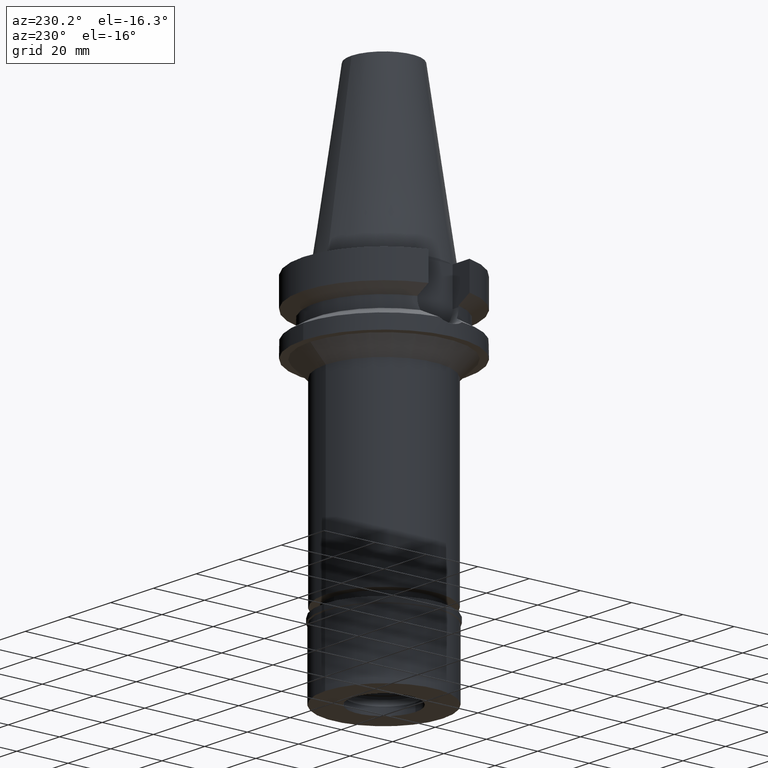
[diagram: clean part render]
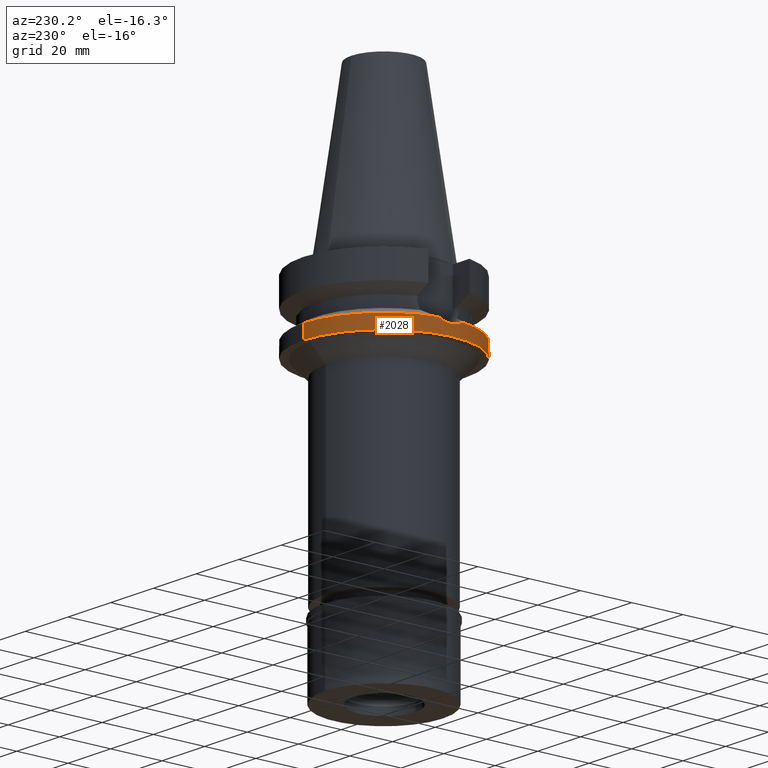
[diagram: same view with one face highlighted and labeled with its STEP entity id]
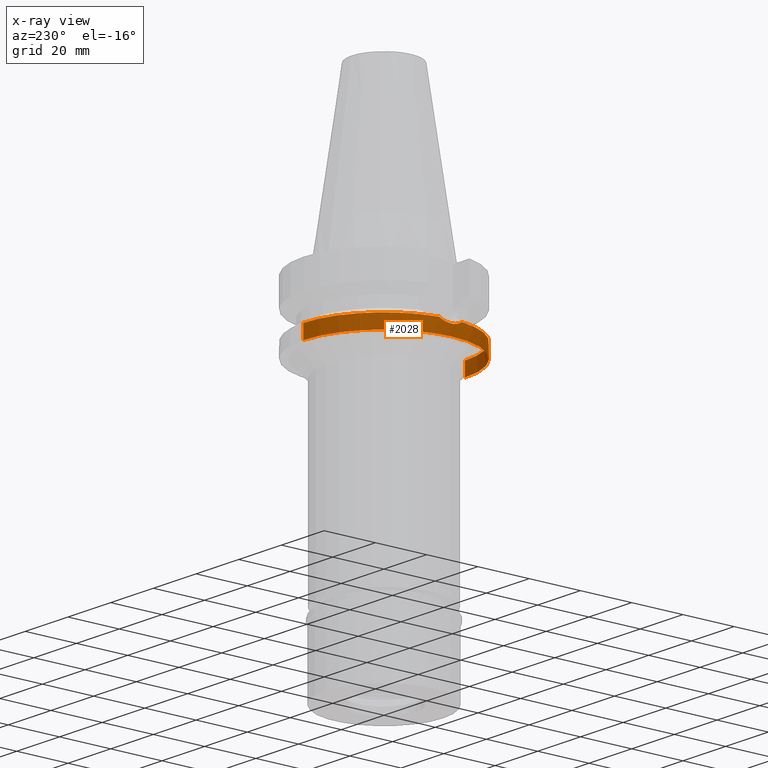
[diagram: x-ray of the same camera — body ghosted, the highlighted face saturated]
A machine part, auxiliary view. The second image highlights one B-rep face of the part: STEP entity #2028.
The next image is the same camera in x-ray: the body ghosted, the highlighted face saturated — about 1% of this face is hidden behind the body in this view.
In plain terms, the highlighted cylindrical surface (partial cylindrical patch) has radius 31.5 mm, axis along (0, 0, -1).
Its self-contained STEP definition (entity closure, byte-faithful):
#9 = CIRCLE ( 'NONE', #1696, 31.50000000000000000 ) ;
#63 = AXIS2_PLACEMENT_3D ( 'NONE', #2615, #1181, #1423 ) ;
#84 = ORIENTED_EDGE ( 'NONE', *, *, #2516, .F. ) ;
#112 = VECTOR ( 'NONE', #1348, 1000.000000000000000 ) ;
#157 = CARTESIAN_POINT ( 'NONE',  ( -31.34957680028626470, 3.080360528137538356, -22.38998594038647738 ) ) ;
#167 = CIRCLE ( 'NONE', #1359, 31.50000000000001421 ) ;
#172 = CARTESIAN_POINT ( 'NONE',  ( 0.0000000000000000000, 0.0000000000000000000, -21.63449434733000132 ) ) ;
#193 = CARTESIAN_POINT ( 'NONE',  ( 0.0000000000000000000, 31.50000000000000000, -21.63449434733000132 ) ) ;
#197 = CARTESIAN_POINT ( 'NONE',  ( -31.38376274163335466, 2.709985741147285854, -22.53275651251309242 ) ) ;
#235 = DIRECTION ( 'NONE',  ( 0.0000000000000000000, 0.0000000000000000000, -1.000000000000000000 ) ) ;
#261 = CARTESIAN_POINT ( 'NONE',  ( 0.0000000000000000000, 0.0000000000000000000, 0.0000000000000000000 ) ) ;
#406 = CARTESIAN_POINT ( 'NONE',  ( -31.17899877608999759, -4.485536235554000051, -21.63449434733000132 ) ) ;
#510 = VERTEX_POINT ( 'NONE', #2215 ) ;
#628 = VERTEX_POINT ( 'NONE', #1150 ) ;
#713 = FACE_OUTER_BOUND ( 'NONE', #2639, .T. ) ;
#729 = CARTESIAN_POINT ( 'NONE',  ( 0.0000000000000000000, -31.50000000000000000, -27.00000000000000000 ) ) ;
#741 = CYLINDRICAL_SURFACE ( 'NONE', #957, 31.50000000000000000 ) ;
#845 = CARTESIAN_POINT ( 'NONE',  ( 0.0000000000000000000, -31.50000000000000000, -21.63449434733000132 ) ) ;
#884 = DIRECTION ( 'NONE',  ( 0.0000000000000000000, 0.0000000000000000000, -1.000000000000000000 ) ) ;
#894 = CARTESIAN_POINT ( 'NONE',  ( -31.22683168261138675, 4.153049314144144688, -21.85760503549061085 ) ) ;
#911 = EDGE_CURVE ( 'NONE', #628, #1724, #167, .T. ) ;
#944 = DIRECTION ( 'NONE',  ( -0.9898094849552905306, 0.1423979757318985240, 0.0000000000000000000 ) ) ;
#957 = AXIS2_PLACEMENT_3D ( 'NONE', #261, #1684, #1428 ) ;
#1097 = LINE ( 'NONE', #193, #112 ) ;
#1108 = CIRCLE ( 'NONE', #63, 31.50000000000000000 ) ;
#1129 = CARTESIAN_POINT ( 'NONE',  ( -31.39943895711289201, 2.522230766773328803, -22.59723491002986151 ) ) ;
#1150 = CARTESIAN_POINT ( 'NONE',  ( -31.17899877608999759, 4.485536235554000051, -21.63449434733000132 ) ) ;
#1152 = EDGE_CURVE ( 'NONE', #1257, #2012, #1108, .T. ) ;
#1160 = CARTESIAN_POINT ( 'NONE',  ( -31.35744702416881680, -3.088306450163058159, -22.42610245956065995 ) ) ;
#1177 = CARTESIAN_POINT ( 'NONE',  ( 0.0000000000000000000, 0.0000000000000000000, -21.63449434733000132 ) ) ;
#1181 = DIRECTION ( 'NONE',  ( 0.0000000000000000000, 0.0000000000000000000, 1.000000000000000000 ) ) ;
#1257 = VERTEX_POINT ( 'NONE', #2429 ) ;
#1265 = B_SPLINE_CURVE_WITH_KNOTS ( 'NONE', 3,
 ( #406, #2299, #1160, #2076, #2774, #2066, #2053, #2799, #1859, #3035, #1342, #1129, #197, #157, #1398, #3061, #894, #1817 ),
 .UNSPECIFIED., .F., .F.,
 ( 4, 2, 2, 2, 2, 2, 2, 2, 4 ),
 ( 0.0000000000000000000, 0.2499999999999996114, 0.3749999999999995559, 0.4999999999999995559, 0.6249999999999994449, 0.7499999999999994449, 0.8124999999999996669, 0.8749999999999997780, 1.000000000000000000 ),
 .UNSPECIFIED. ) ;
#1292 = ORIENTED_EDGE ( 'NONE', *, *, #2522, .T. ) ;
#1342 = CARTESIAN_POINT ( 'NONE',  ( -31.44181936179929338, 1.951321262438815651, -22.76994943694056772 ) ) ;
#1348 = DIRECTION ( 'NONE',  ( 0.0000000000000000000, 1.099151708819000049E-13, -1.000000000000000000 ) ) ;
#1359 = AXIS2_PLACEMENT_3D ( 'NONE', #1177, #235, #944 ) ;
#1398 = CARTESIAN_POINT ( 'NONE',  ( -31.33120162979506773, 3.261756761160262919, -22.31227281030336584 ) ) ;
#1423 = DIRECTION ( 'NONE',  ( 0.0000000000000000000, 1.000000000000000000, 0.0000000000000000000 ) ) ;
#1428 = DIRECTION ( 'NONE',  ( 0.0000000000000000000, -1.000000000000000000, 0.0000000000000000000 ) ) ;
#1521 = CARTESIAN_POINT ( 'NONE',  ( 0.0000000000000000000, 31.50000000000000000, -21.63449434733000132 ) ) ;
#1559 = ORIENTED_EDGE ( 'NONE', *, *, #1152, .T. ) ;
#1565 = DIRECTION ( 'NONE',  ( 0.0000000000000000000, -1.099151708819000049E-13, -1.000000000000000000 ) ) ;
#1623 = DIRECTION ( 'NONE',  ( 0.0000000000000000000, -1.000000000000000000, 0.0000000000000000000 ) ) ;
#1684 = DIRECTION ( 'NONE',  ( 0.0000000000000000000, 0.0000000000000000000, -1.000000000000000000 ) ) ;
#1696 = AXIS2_PLACEMENT_3D ( 'NONE', #172, #884, #1623 ) ;
#1724 = VERTEX_POINT ( 'NONE', #1521 ) ;
#1765 = VERTEX_POINT ( 'NONE', #2440 ) ;
#1817 = CARTESIAN_POINT ( 'NONE',  ( -31.17899877608999759, 4.485536235554000051, -21.63449434733000132 ) ) ;
#1859 = CARTESIAN_POINT ( 'NONE',  ( -31.49264463724791341, 0.7852891962001290471, -22.97138455658708267 ) ) ;
#1911 = EDGE_CURVE ( 'NONE', #510, #628, #1265, .T. ) ;
#2012 = VERTEX_POINT ( 'NONE', #729 ) ;
#2028 = ADVANCED_FACE ( 'NONE', ( #713 ), #741, .T. ) ;
#2053 = CARTESIAN_POINT ( 'NONE',  ( -31.50000885610014478, -0.3932018972366894127, -23.00009117344402654 ) ) ;
#2066 = CARTESIAN_POINT ( 'NONE',  ( -31.49262578477392793, -0.7853333951646006561, -22.97131158440141974 ) ) ;
#2076 = CARTESIAN_POINT ( 'NONE',  ( -31.44176130947671410, -1.951903150469063597, -22.76972074557994574 ) ) ;
#2215 = CARTESIAN_POINT ( 'NONE',  ( -31.17899877608999759, -4.485536235554000051, -21.63449434733000132 ) ) ;
#2299 = CARTESIAN_POINT ( 'NONE',  ( -31.27471953561892448, -3.820180459250745564, -22.08097201475647609 ) ) ;
#2333 = LINE ( 'NONE', #845, #2805 ) ;
#2429 = CARTESIAN_POINT ( 'NONE',  ( 0.0000000000000000000, 31.50000000000000000, -27.00000000000000000 ) ) ;
#2440 = CARTESIAN_POINT ( 'NONE',  ( 0.0000000000000000000, -31.50000000000000000, -21.63449434733000132 ) ) ;
#2516 = EDGE_CURVE ( 'NONE', #1765, #2012, #2333, .T. ) ;
#2522 = EDGE_CURVE ( 'NONE', #1724, #1257, #1097, .T. ) ;
#2615 = CARTESIAN_POINT ( 'NONE',  ( 0.0000000000000000000, 0.0000000000000000000, -27.00000000000000000 ) ) ;
#2639 = EDGE_LOOP ( 'NONE', ( #2991, #1292, #1559, #84, #2714, #3085 ) ) ;
#2714 = ORIENTED_EDGE ( 'NONE', *, *, #2953, .T. ) ;
#2774 = CARTESIAN_POINT ( 'NONE',  ( -31.46351279377704913, -1.565116620956837012, -22.85612982712048691 ) ) ;
#2799 = CARTESIAN_POINT ( 'NONE',  ( -31.49999112794908029, 0.3946195706096282119, -23.00002780311888984 ) ) ;
#2805 = VECTOR ( 'NONE', #1565, 1000.000000000000000 ) ;
#2953 = EDGE_CURVE ( 'NONE', #1765, #510, #9, .T. ) ;
#2991 = ORIENTED_EDGE ( 'NONE', *, *, #911, .T. ) ;
#3035 = CARTESIAN_POINT ( 'NONE',  ( -31.46339051649538021, 1.567929391317441024, -22.85564426250521919 ) ) ;
#3061 = CARTESIAN_POINT ( 'NONE',  ( -31.27140680107534720, 3.805539071544131513, -22.05493848725401662 ) ) ;
#3085 = ORIENTED_EDGE ( 'NONE', *, *, #1911, .T. ) ;